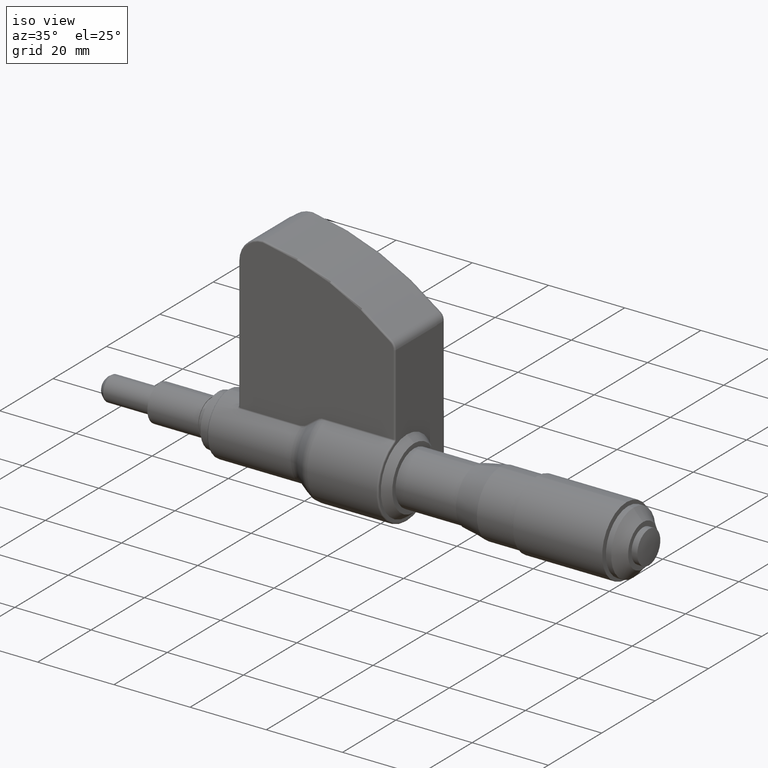
[diagram: clean part render]
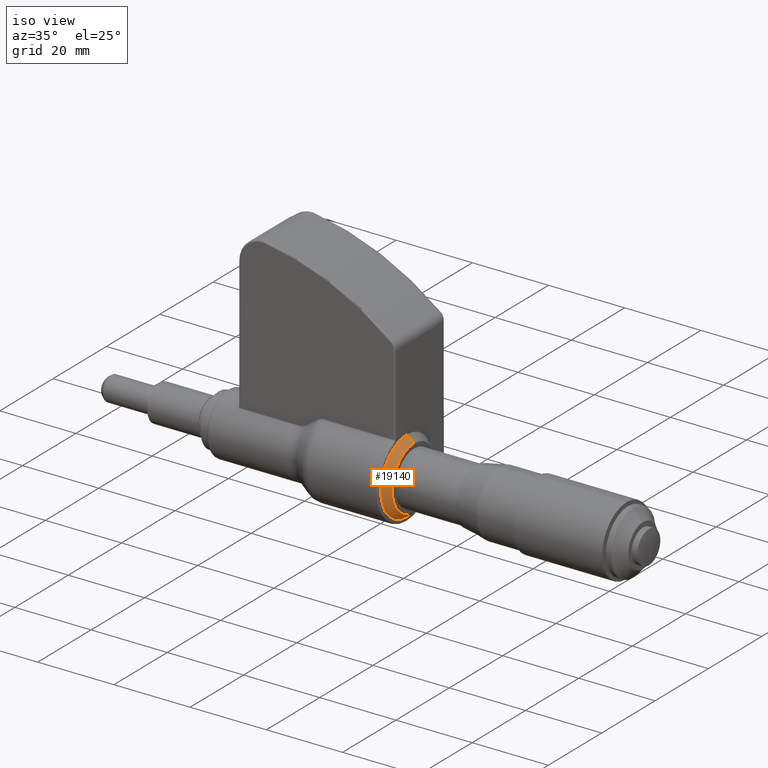
[diagram: same view with one face highlighted and labeled with its STEP entity id]
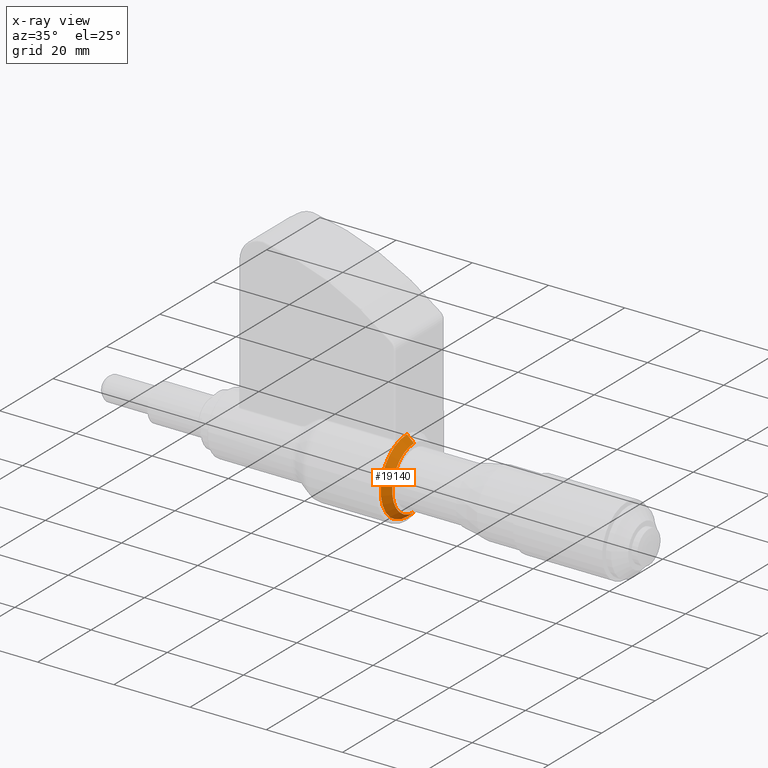
[diagram: x-ray of the same camera — body ghosted, the highlighted face saturated]
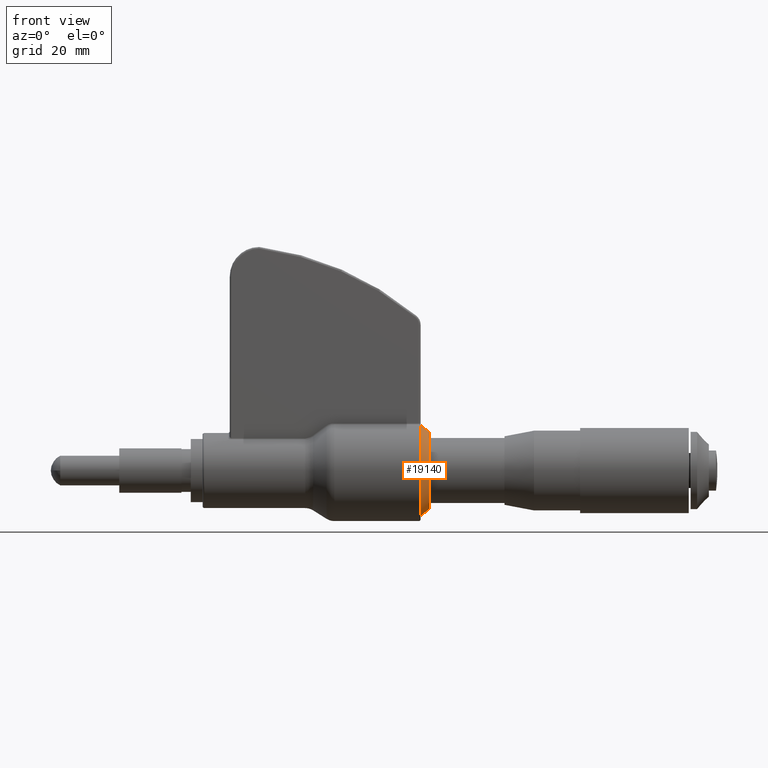
[diagram: same view with one face highlighted and labeled with its STEP entity id]
A machine part, iso view. The second image highlights one B-rep face of the part: STEP entity #19140.
The next image is the same camera in x-ray: the body ghosted, the highlighted face saturated — about 0% of this face is hidden behind the body in this view.
A second angle (front view) of the same face is appended — the face is thin or edge-on in the first view.
In plain terms, the highlighted conical surface has half-angle 39.806 deg.
Its self-contained STEP definition (entity closure, byte-faithful):
#18966 = VERTEX_POINT ( 'NONE', #42964 ) ;
#18968 = EDGE_CURVE ( 'NONE', #19080, #18966, #42958, .T. ) ;
#19051 = EDGE_CURVE ( 'NONE', #18966, #19084, #43339, .T. ) ;
#19079 = VERTEX_POINT ( 'NONE', #43463 ) ;
#19080 = VERTEX_POINT ( 'NONE', #43462 ) ;
#19083 = EDGE_CURVE ( 'NONE', #19079, #19084, #43460, .T. ) ;
#19084 = VERTEX_POINT ( 'NONE', #43453 ) ;
#19140 = ADVANCED_FACE ( 'NONE', ( #43737 ), #43810, .T. ) ;
#19141 = EDGE_LOOP ( 'NONE', ( #19142, #19144, #19148, #19150 ) ) ;
#19142 = ORIENTED_EDGE ( 'NONE', *, *, #19083, .F. ) ;
#19144 = ORIENTED_EDGE ( 'NONE', *, *, #19146, .F. ) ;
#19146 = EDGE_CURVE ( 'NONE', #19080, #19079, #43800, .T. ) ;
#19148 = ORIENTED_EDGE ( 'NONE', *, *, #18968, .T. ) ;
#19150 = ORIENTED_EDGE ( 'NONE', *, *, #19051, .T. ) ;
#42953 = DIRECTION ( 'NONE',  ( -0.7682212795973751800, 0.0000000000000000000, 0.6401843996644806000 ) ) ;
#42954 = VECTOR ( 'NONE', #42953, 39.37007874015748100 ) ;
#42956 = CARTESIAN_POINT ( 'NONE',  ( 1.919999999999999900, 0.0000000000000000000, 0.3224999999999999500 ) ) ;
#42958 = LINE ( 'NONE', #42956, #42954 ) ;
#42964 = CARTESIAN_POINT ( 'NONE',  ( 1.845000000000000200, 0.0000000000000000000, 0.3850000000000000100 ) ) ;
#43333 = DIRECTION ( 'NONE',  ( 0.0000000000000000000, 0.0000000000000000000, -1.000000000000000000 ) ) ;
#43335 = DIRECTION ( 'NONE',  ( 1.000000000000000000, 0.0000000000000000000, 0.0000000000000000000 ) ) ;
#43336 = CARTESIAN_POINT ( 'NONE',  ( 1.845000000000000200, 0.0000000000000000000, 0.0000000000000000000 ) ) ;
#43338 = AXIS2_PLACEMENT_3D ( 'NONE', #43336, #43335, #43333 ) ;
#43339 = CIRCLE ( 'NONE', #43338, 0.3850000000000000100 ) ;
#43453 = CARTESIAN_POINT ( 'NONE',  ( 1.845000000000000200, 4.714734462216152000E-017, -0.3850000000000000100 ) ) ;
#43456 = DIRECTION ( 'NONE',  ( -0.7682212795973751800, 7.839738834470871100E-017, -0.6401843996644806000 ) ) ;
#43458 = VECTOR ( 'NONE', #43456, 39.37007874015748100 ) ;
#43459 = CARTESIAN_POINT ( 'NONE',  ( 1.919999999999999900, 3.949355491077166200E-017, -0.3224999999999999500 ) ) ;
#43460 = LINE ( 'NONE', #43459, #43458 ) ;
#43462 = CARTESIAN_POINT ( 'NONE',  ( 1.919999999999999900, 0.0000000000000000000, 0.3224999999999999500 ) ) ;
#43463 = CARTESIAN_POINT ( 'NONE',  ( 1.919999999999999900, 4.332044976646659700E-017, -0.3224999999999999500 ) ) ;
#43737 = FACE_OUTER_BOUND ( 'NONE', #19141, .T. ) ;
#43796 = DIRECTION ( 'NONE',  ( 0.0000000000000000000, 0.0000000000000000000, -1.000000000000000000 ) ) ;
#43798 = DIRECTION ( 'NONE',  ( 1.000000000000000000, 0.0000000000000000000, 0.0000000000000000000 ) ) ;
#43799 = AXIS2_PLACEMENT_3D ( 'NONE', #43811, #43798, #43796 ) ;
#43800 = CIRCLE ( 'NONE', #43799, 0.3224999999999999500 ) ;
#43803 = DIRECTION ( 'NONE',  ( 0.0000000000000000000, 0.0000000000000000000, 1.000000000000000000 ) ) ;
#43806 = DIRECTION ( 'NONE',  ( -1.000000000000000000, 0.0000000000000000000, 0.0000000000000000000 ) ) ;
#43808 = AXIS2_PLACEMENT_3D ( 'NONE', #43812, #43806, #43803 ) ;
#43810 = CONICAL_SURFACE ( 'NONE', #43808, 0.3224999999999999500, 0.6947382761967041400 ) ;
#43811 = CARTESIAN_POINT ( 'NONE',  ( 1.919999999999999900, 0.0000000000000000000, 0.0000000000000000000 ) ) ;
#43812 = CARTESIAN_POINT ( 'NONE',  ( 1.919999999999999900, 0.0000000000000000000, 0.0000000000000000000 ) ) ;